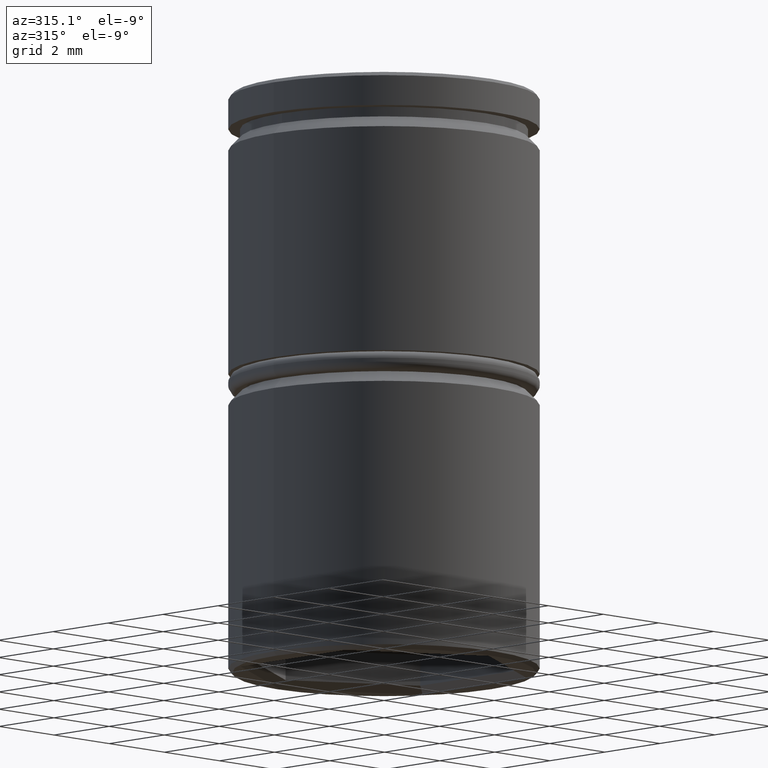
[diagram: clean part render]
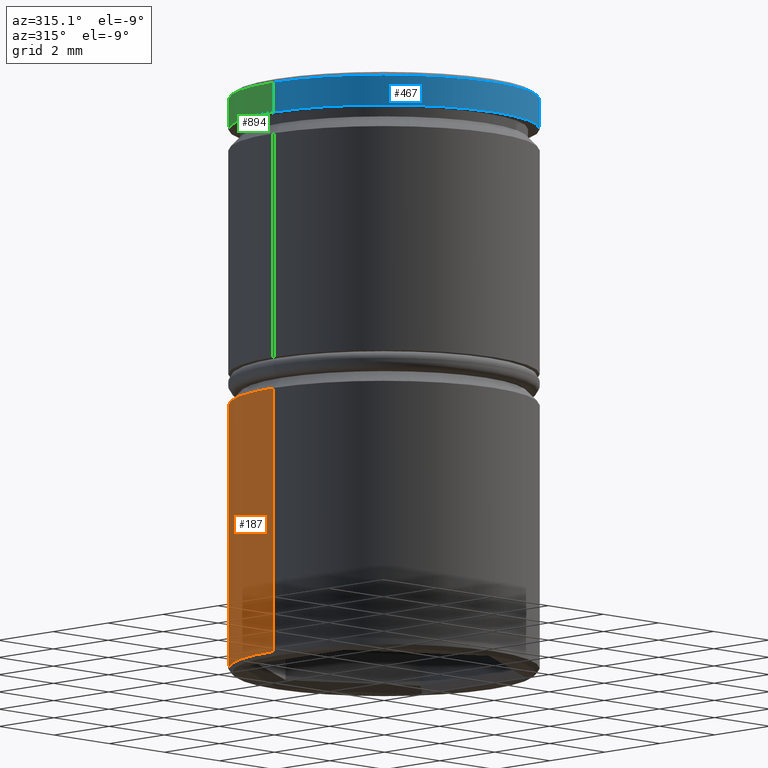
[diagram: same view with three faces highlighted in distinct colors, each labeled with its STEP entity id]
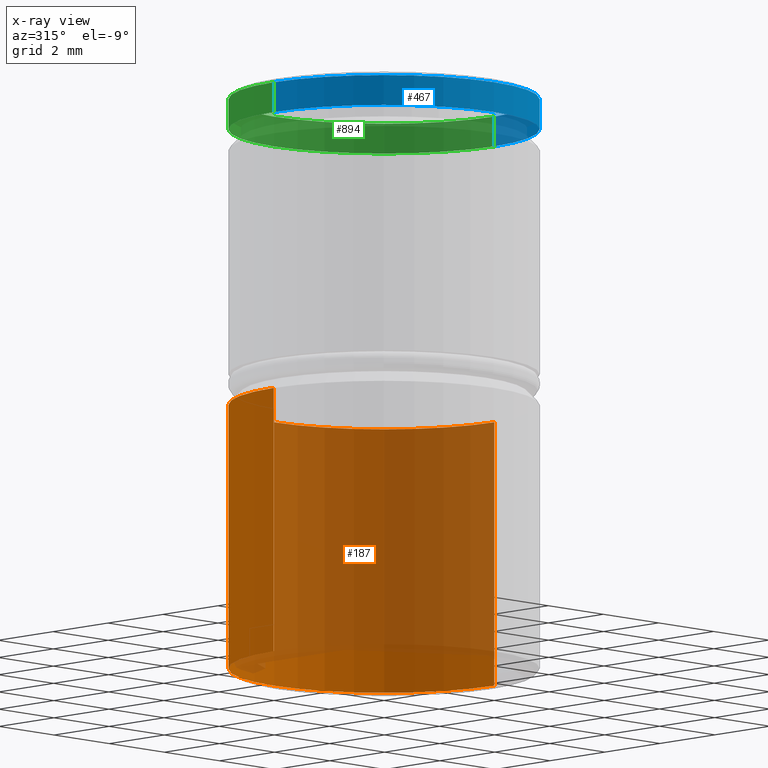
[diagram: x-ray of the same camera — body ghosted, the three highlighted faces saturated]
A machine part, auxiliary view with three faces highlighted in distinct colors.
The next image is the same camera in x-ray (body ghosted, the three faces saturated) — at least one of them is partly hidden behind the body in this view.
Their STEP definitions:

[orange] entity #187 — the highlighted cylindrical surface (partial cylindrical patch) has radius 4 mm, axis along (-0, -0, 1).
#31 = EDGE_CURVE ( 'NONE', #190, #822, #185, .T. ) ;
#72 = CARTESIAN_POINT ( 'NONE',  ( -4.000000000000000000, 4.898587196589412829E-16, -14.90000000000000036 ) ) ;
#81 = VECTOR ( 'NONE', #481, 1000.000000000000000 ) ;
#140 = AXIS2_PLACEMENT_3D ( 'NONE', #480, #754, #296 ) ;
#151 = DIRECTION ( 'NONE',  ( -0.000000000000000000, -0.000000000000000000, 1.000000000000000000 ) ) ;
#160 = AXIS2_PLACEMENT_3D ( 'NONE', #1014, #662, #758 ) ;
#176 = CIRCLE ( 'NONE', #140, 4.000000000000000000 ) ;
#177 = CARTESIAN_POINT ( 'NONE',  ( 0.000000000000000000, 0.000000000000000000, 0.000000000000000000 ) ) ;
#185 = LINE ( 'NONE', #761, #81 ) ;
#187 = ADVANCED_FACE ( 'NONE', ( #1175 ), #715, .T. ) ;
#190 = VERTEX_POINT ( 'NONE', #72 ) ;
#201 = CARTESIAN_POINT ( 'NONE',  ( -4.000000000000000000, 4.898587196589412829E-16, -8.050000000000000711 ) ) ;
#268 = AXIS2_PLACEMENT_3D ( 'NONE', #177, #356, #545 ) ;
#296 = DIRECTION ( 'NONE',  ( -1.000000000000000000, 0.000000000000000000, 0.000000000000000000 ) ) ;
#356 = DIRECTION ( 'NONE',  ( -0.000000000000000000, -0.000000000000000000, 1.000000000000000000 ) ) ;
#439 = EDGE_CURVE ( 'NONE', #782, #190, #176, .T. ) ;
#474 = ORIENTED_EDGE ( 'NONE', *, *, #800, .T. ) ;
#480 = CARTESIAN_POINT ( 'NONE',  ( 0.000000000000000000, 0.000000000000000000, -14.90000000000000036 ) ) ;
#481 = DIRECTION ( 'NONE',  ( -0.000000000000000000, -0.000000000000000000, 1.000000000000000000 ) ) ;
#545 = DIRECTION ( 'NONE',  ( 1.000000000000000000, 0.000000000000000000, 0.000000000000000000 ) ) ;
#589 = CARTESIAN_POINT ( 'NONE',  ( 4.000000000000000000, 0.000000000000000000, -14.90000000000000036 ) ) ;
#662 = DIRECTION ( 'NONE',  ( 0.000000000000000000, 0.000000000000000000, -1.000000000000000000 ) ) ;
#684 = EDGE_LOOP ( 'NONE', ( #1101, #1058, #474, #1174 ) ) ;
#700 = CARTESIAN_POINT ( 'NONE',  ( 4.000000000000000000, 0.000000000000000000, 0.000000000000000000 ) ) ;
#715 = CYLINDRICAL_SURFACE ( 'NONE', #268, 4.000000000000000000 ) ;
#752 = CIRCLE ( 'NONE', #160, 4.000000000000000000 ) ;
#754 = DIRECTION ( 'NONE',  ( -0.000000000000000000, -0.000000000000000000, 1.000000000000000000 ) ) ;
#758 = DIRECTION ( 'NONE',  ( 1.000000000000000000, 0.000000000000000000, 0.000000000000000000 ) ) ;
#761 = CARTESIAN_POINT ( 'NONE',  ( -4.000000000000000000, 4.898587196589412829E-16, 0.000000000000000000 ) ) ;
#782 = VERTEX_POINT ( 'NONE', #589 ) ;
#800 = EDGE_CURVE ( 'NONE', #822, #1011, #752, .T. ) ;
#822 = VERTEX_POINT ( 'NONE', #201 ) ;
#839 = EDGE_CURVE ( 'NONE', #782, #1011, #1040, .T. ) ;
#891 = CARTESIAN_POINT ( 'NONE',  ( 4.000000000000000000, 0.000000000000000000, -8.050000000000000711 ) ) ;
#1011 = VERTEX_POINT ( 'NONE', #891 ) ;
#1014 = CARTESIAN_POINT ( 'NONE',  ( 0.000000000000000000, 0.000000000000000000, -8.050000000000000711 ) ) ;
#1040 = LINE ( 'NONE', #700, #1068 ) ;
#1058 = ORIENTED_EDGE ( 'NONE', *, *, #31, .T. ) ;
#1068 = VECTOR ( 'NONE', #151, 1000.000000000000000 ) ;
#1101 = ORIENTED_EDGE ( 'NONE', *, *, #439, .T. ) ;
#1174 = ORIENTED_EDGE ( 'NONE', *, *, #839, .F. ) ;
#1175 = FACE_OUTER_BOUND ( 'NONE', #684, .T. ) ;

[blue] entity #467 — the highlighted cylindrical surface (partial cylindrical patch) has radius 4 mm, axis along (-0, -0, 1).
#54 = ORIENTED_EDGE ( 'NONE', *, *, #192, .T. ) ;
#85 = DIRECTION ( 'NONE',  ( -0.000000000000000000, -0.000000000000000000, 1.000000000000000000 ) ) ;
#152 = CARTESIAN_POINT ( 'NONE',  ( 4.000000000000000000, 0.000000000000000000, 0.000000000000000000 ) ) ;
#163 = EDGE_LOOP ( 'NONE', ( #650, #429, #54, #874 ) ) ;
#178 = DIRECTION ( 'NONE',  ( 1.000000000000000000, 0.000000000000000000, 0.000000000000000000 ) ) ;
#192 = EDGE_CURVE ( 'NONE', #526, #604, #889, .T. ) ;
#304 = DIRECTION ( 'NONE',  ( 1.000000000000000000, 0.000000000000000000, 0.000000000000000000 ) ) ;
#367 = VERTEX_POINT ( 'NONE', #1074 ) ;
#386 = EDGE_CURVE ( 'NONE', #476, #526, #902, .T. ) ;
#429 = ORIENTED_EDGE ( 'NONE', *, *, #386, .T. ) ;
#436 = DIRECTION ( 'NONE',  ( -0.000000000000000000, -0.000000000000000000, 1.000000000000000000 ) ) ;
#467 = ADVANCED_FACE ( 'NONE', ( #704 ), #1023, .T. ) ;
#476 = VERTEX_POINT ( 'NONE', #760 ) ;
#495 = CARTESIAN_POINT ( 'NONE',  ( -4.000000000000000000, 4.898587196589412829E-16, 0.000000000000000000 ) ) ;
#502 = AXIS2_PLACEMENT_3D ( 'NONE', #1067, #85, #178 ) ;
#526 = VERTEX_POINT ( 'NONE', #598 ) ;
#544 = CIRCLE ( 'NONE', #974, 4.000000000000000000 ) ;
#570 = DIRECTION ( 'NONE',  ( -0.000000000000000000, -0.000000000000000000, 1.000000000000000000 ) ) ;
#598 = CARTESIAN_POINT ( 'NONE',  ( 4.000000000000000000, 0.000000000000000000, -0.8749999999999998890 ) ) ;
#604 = VERTEX_POINT ( 'NONE', #1000 ) ;
#616 = DIRECTION ( 'NONE',  ( 0.000000000000000000, 0.000000000000000000, -1.000000000000000000 ) ) ;
#650 = ORIENTED_EDGE ( 'NONE', *, *, #737, .F. ) ;
#704 = FACE_OUTER_BOUND ( 'NONE', #163, .T. ) ;
#713 = CARTESIAN_POINT ( 'NONE',  ( 0.000000000000000000, 0.000000000000000000, -0.1000000000000028644 ) ) ;
#737 = EDGE_CURVE ( 'NONE', #476, #367, #1112, .T. ) ;
#760 = CARTESIAN_POINT ( 'NONE',  ( -4.000000000000000000, 4.898587196589412829E-16, -0.8749999999999998890 ) ) ;
#846 = VECTOR ( 'NONE', #436, 1000.000000000000000 ) ;
#848 = AXIS2_PLACEMENT_3D ( 'NONE', #866, #1043, #304 ) ;
#866 = CARTESIAN_POINT ( 'NONE',  ( 0.000000000000000000, 0.000000000000000000, 0.000000000000000000 ) ) ;
#874 = ORIENTED_EDGE ( 'NONE', *, *, #1039, .T. ) ;
#889 = LINE ( 'NONE', #152, #846 ) ;
#902 = CIRCLE ( 'NONE', #502, 4.000000000000000000 ) ;
#974 = AXIS2_PLACEMENT_3D ( 'NONE', #713, #616, #1071 ) ;
#1000 = CARTESIAN_POINT ( 'NONE',  ( 4.000000000000000000, 0.000000000000000000, -0.1000000000000028644 ) ) ;
#1023 = CYLINDRICAL_SURFACE ( 'NONE', #848, 4.000000000000000000 ) ;
#1039 = EDGE_CURVE ( 'NONE', #604, #367, #544, .T. ) ;
#1043 = DIRECTION ( 'NONE',  ( -0.000000000000000000, -0.000000000000000000, 1.000000000000000000 ) ) ;
#1067 = CARTESIAN_POINT ( 'NONE',  ( 0.000000000000000000, 0.000000000000000000, -0.8749999999999998890 ) ) ;
#1071 = DIRECTION ( 'NONE',  ( 1.000000000000000000, 0.000000000000000000, 0.000000000000000000 ) ) ;
#1074 = CARTESIAN_POINT ( 'NONE',  ( -4.000000000000000000, 4.898587196589412829E-16, -0.1000000000000028644 ) ) ;
#1112 = LINE ( 'NONE', #495, #1126 ) ;
#1126 = VECTOR ( 'NONE', #570, 1000.000000000000000 ) ;

[green] entity #894 — the highlighted cylindrical surface (partial cylindrical patch) has radius 4 mm, axis along (-0, -0, 1).
#152 = CARTESIAN_POINT ( 'NONE',  ( 4.000000000000000000, 0.000000000000000000, 0.000000000000000000 ) ) ;
#192 = EDGE_CURVE ( 'NONE', #526, #604, #889, .T. ) ;
#229 = CIRCLE ( 'NONE', #733, 4.000000000000000000 ) ;
#256 = CARTESIAN_POINT ( 'NONE',  ( 0.000000000000000000, 0.000000000000000000, -0.8749999999999998890 ) ) ;
#258 = ORIENTED_EDGE ( 'NONE', *, *, #737, .T. ) ;
#276 = ORIENTED_EDGE ( 'NONE', *, *, #588, .T. ) ;
#367 = VERTEX_POINT ( 'NONE', #1074 ) ;
#391 = AXIS2_PLACEMENT_3D ( 'NONE', #256, #911, #625 ) ;
#436 = DIRECTION ( 'NONE',  ( -0.000000000000000000, -0.000000000000000000, 1.000000000000000000 ) ) ;
#476 = VERTEX_POINT ( 'NONE', #760 ) ;
#495 = CARTESIAN_POINT ( 'NONE',  ( -4.000000000000000000, 4.898587196589412829E-16, 0.000000000000000000 ) ) ;
#511 = CYLINDRICAL_SURFACE ( 'NONE', #601, 4.000000000000000000 ) ;
#526 = VERTEX_POINT ( 'NONE', #598 ) ;
#570 = DIRECTION ( 'NONE',  ( -0.000000000000000000, -0.000000000000000000, 1.000000000000000000 ) ) ;
#588 = EDGE_CURVE ( 'NONE', #367, #604, #229, .T. ) ;
#598 = CARTESIAN_POINT ( 'NONE',  ( 4.000000000000000000, 0.000000000000000000, -0.8749999999999998890 ) ) ;
#601 = AXIS2_PLACEMENT_3D ( 'NONE', #1046, #861, #675 ) ;
#604 = VERTEX_POINT ( 'NONE', #1000 ) ;
#606 = FACE_OUTER_BOUND ( 'NONE', #810, .T. ) ;
#625 = DIRECTION ( 'NONE',  ( 1.000000000000000000, 0.000000000000000000, 0.000000000000000000 ) ) ;
#675 = DIRECTION ( 'NONE',  ( 1.000000000000000000, 0.000000000000000000, 0.000000000000000000 ) ) ;
#678 = EDGE_CURVE ( 'NONE', #526, #476, #709, .T. ) ;
#709 = CIRCLE ( 'NONE', #391, 4.000000000000000000 ) ;
#719 = DIRECTION ( 'NONE',  ( 0.000000000000000000, 0.000000000000000000, -1.000000000000000000 ) ) ;
#733 = AXIS2_PLACEMENT_3D ( 'NONE', #821, #719, #981 ) ;
#737 = EDGE_CURVE ( 'NONE', #476, #367, #1112, .T. ) ;
#760 = CARTESIAN_POINT ( 'NONE',  ( -4.000000000000000000, 4.898587196589412829E-16, -0.8749999999999998890 ) ) ;
#810 = EDGE_LOOP ( 'NONE', ( #995, #258, #276, #948 ) ) ;
#821 = CARTESIAN_POINT ( 'NONE',  ( 0.000000000000000000, 0.000000000000000000, -0.1000000000000028644 ) ) ;
#846 = VECTOR ( 'NONE', #436, 1000.000000000000000 ) ;
#861 = DIRECTION ( 'NONE',  ( -0.000000000000000000, -0.000000000000000000, 1.000000000000000000 ) ) ;
#889 = LINE ( 'NONE', #152, #846 ) ;
#894 = ADVANCED_FACE ( 'NONE', ( #606 ), #511, .T. ) ;
#911 = DIRECTION ( 'NONE',  ( -0.000000000000000000, -0.000000000000000000, 1.000000000000000000 ) ) ;
#948 = ORIENTED_EDGE ( 'NONE', *, *, #192, .F. ) ;
#981 = DIRECTION ( 'NONE',  ( 1.000000000000000000, 0.000000000000000000, 0.000000000000000000 ) ) ;
#995 = ORIENTED_EDGE ( 'NONE', *, *, #678, .T. ) ;
#1000 = CARTESIAN_POINT ( 'NONE',  ( 4.000000000000000000, 0.000000000000000000, -0.1000000000000028644 ) ) ;
#1046 = CARTESIAN_POINT ( 'NONE',  ( 0.000000000000000000, 0.000000000000000000, 0.000000000000000000 ) ) ;
#1074 = CARTESIAN_POINT ( 'NONE',  ( -4.000000000000000000, 4.898587196589412829E-16, -0.1000000000000028644 ) ) ;
#1112 = LINE ( 'NONE', #495, #1126 ) ;
#1126 = VECTOR ( 'NONE', #570, 1000.000000000000000 ) ;